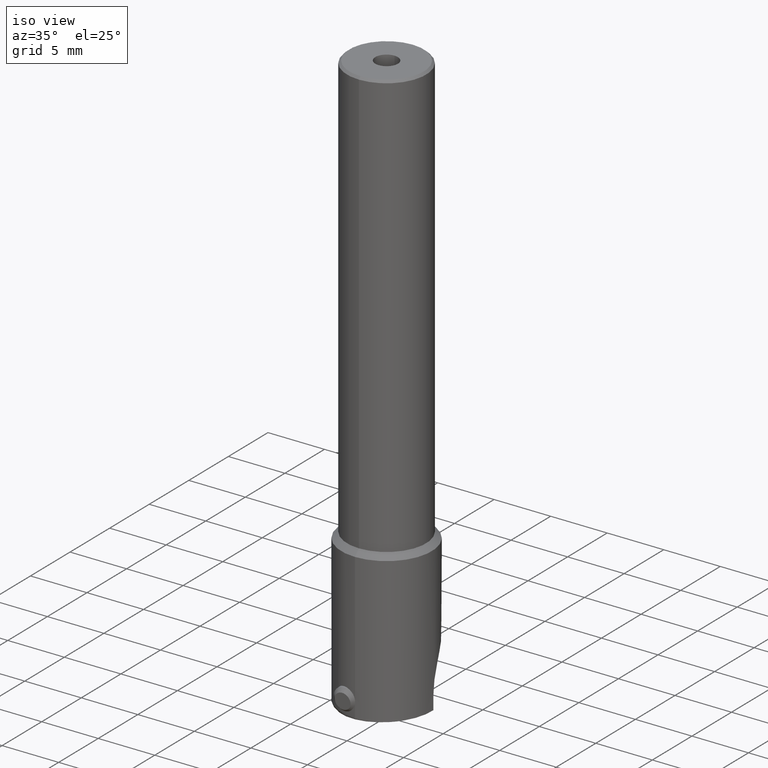
[diagram: clean part render]
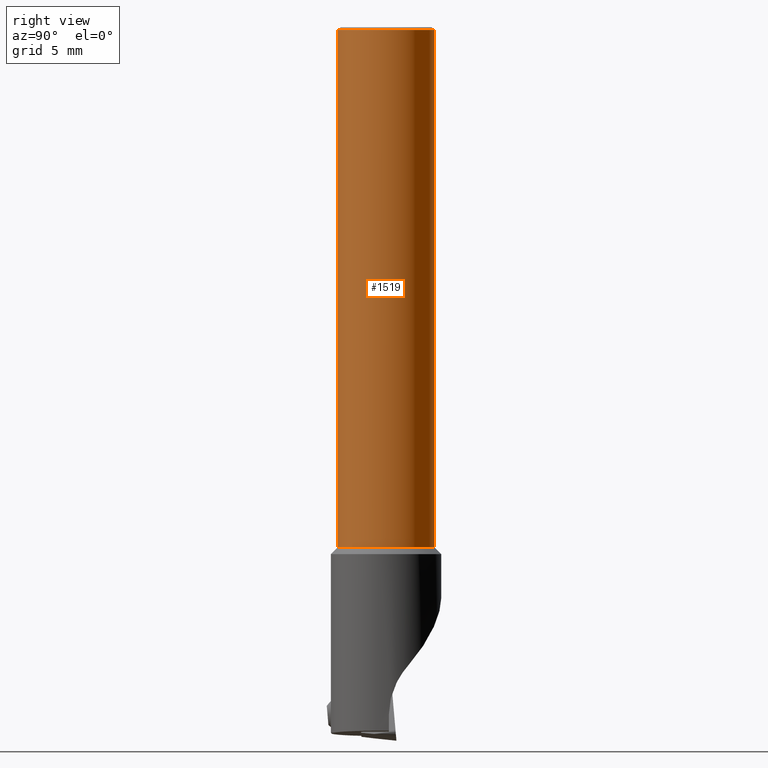
[diagram: tour spotlight — one face highlighted and labeled with its STEP entity id]
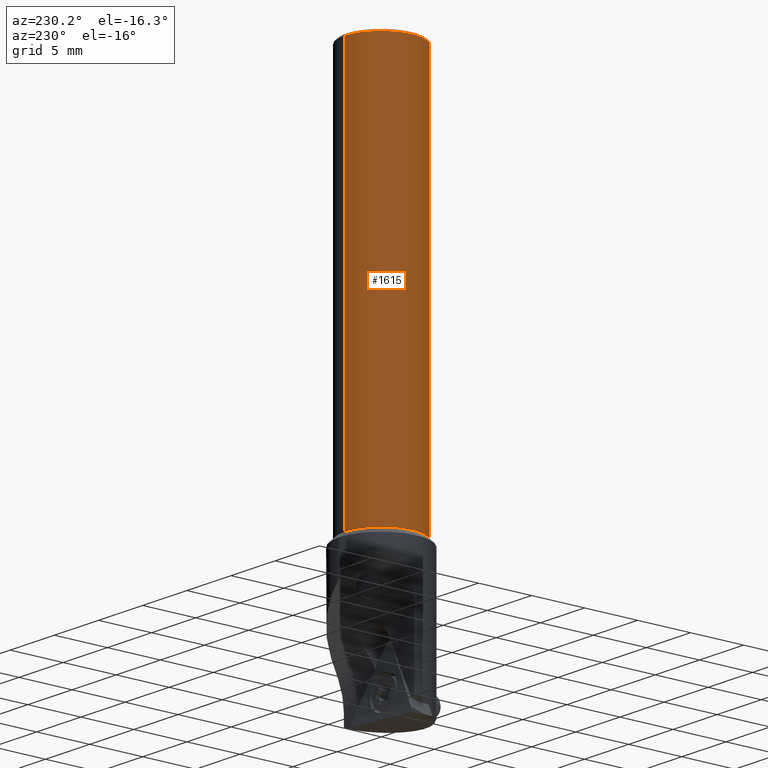
[diagram: tour spotlight — one face highlighted and labeled with its STEP entity id]
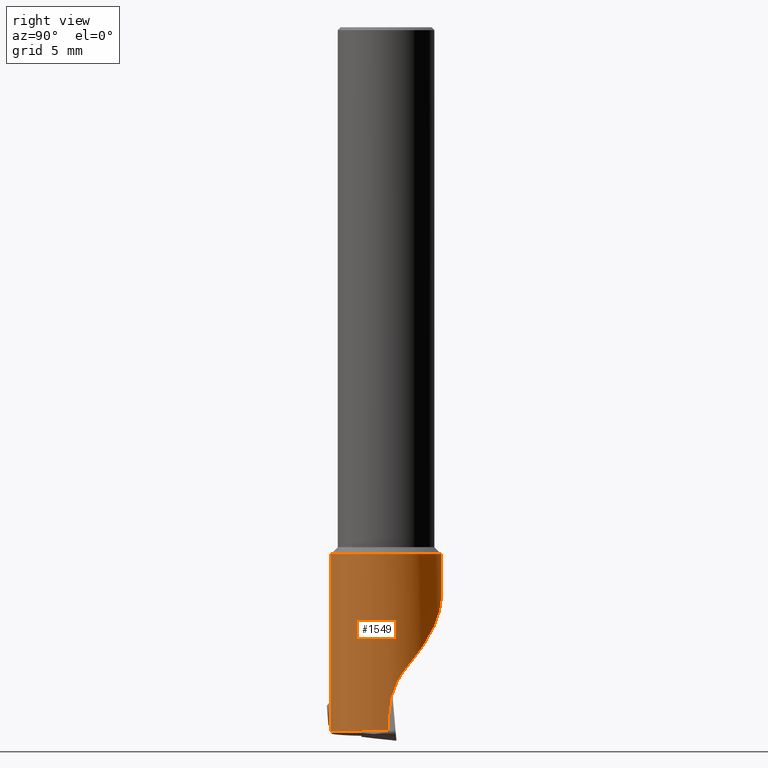
[diagram: tour spotlight — one face highlighted and labeled with its STEP entity id]
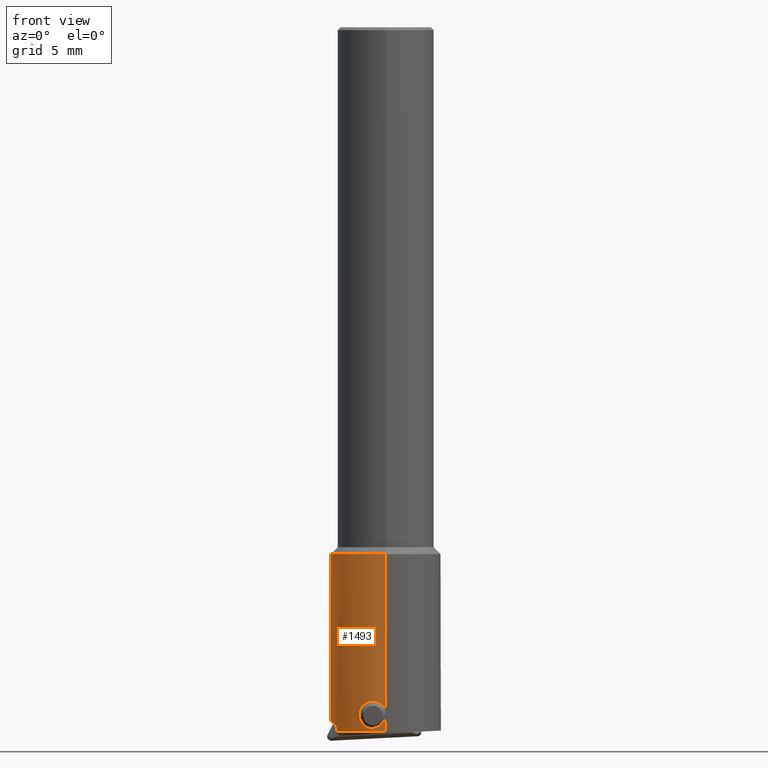
[diagram: tour spotlight — one face highlighted and labeled with its STEP entity id]
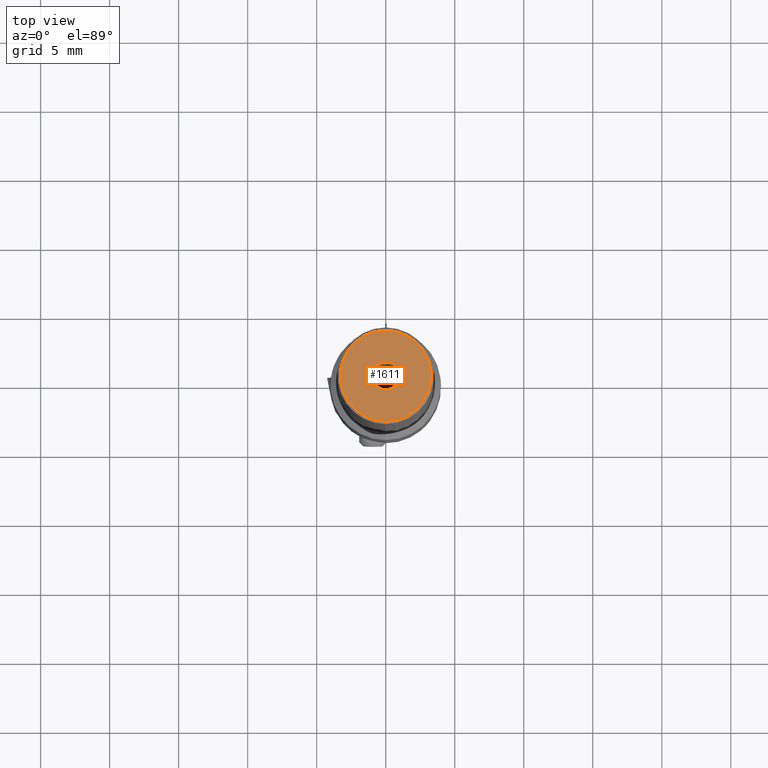
[diagram: tour spotlight — one face highlighted and labeled with its STEP entity id]
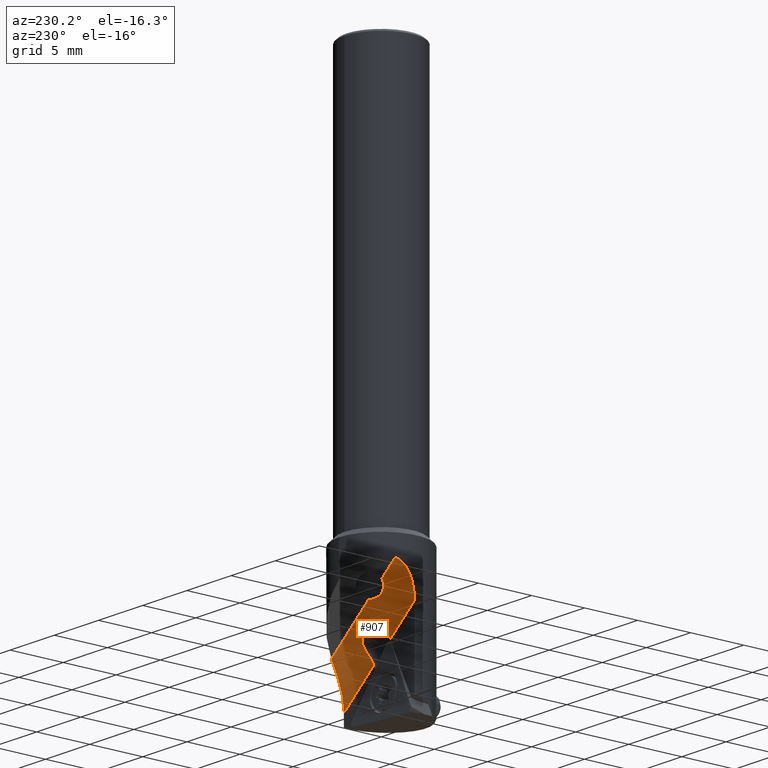
[diagram: tour spotlight — one face highlighted and labeled with its STEP entity id]
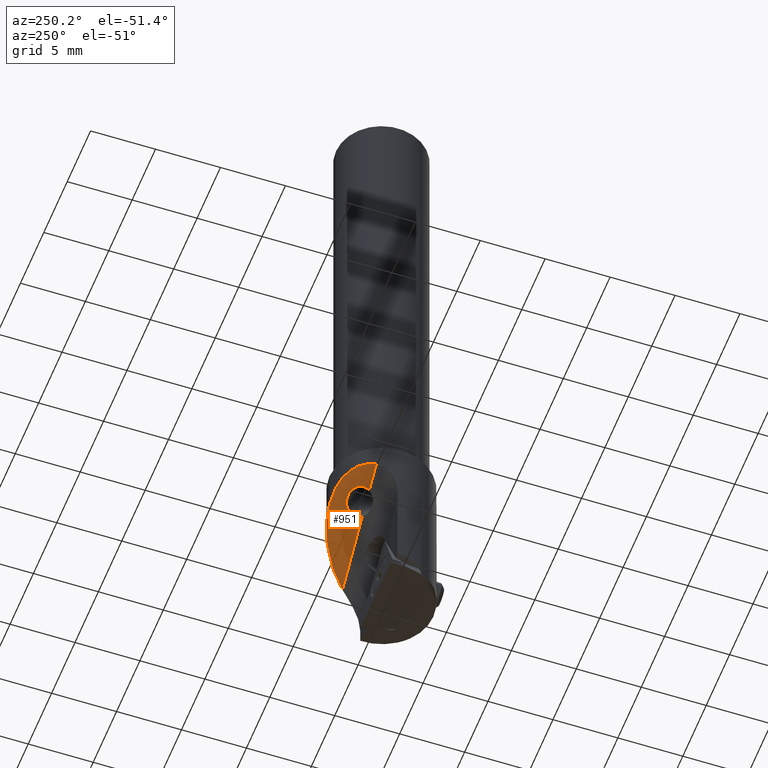
[diagram: tour spotlight — one face highlighted and labeled with its STEP entity id]
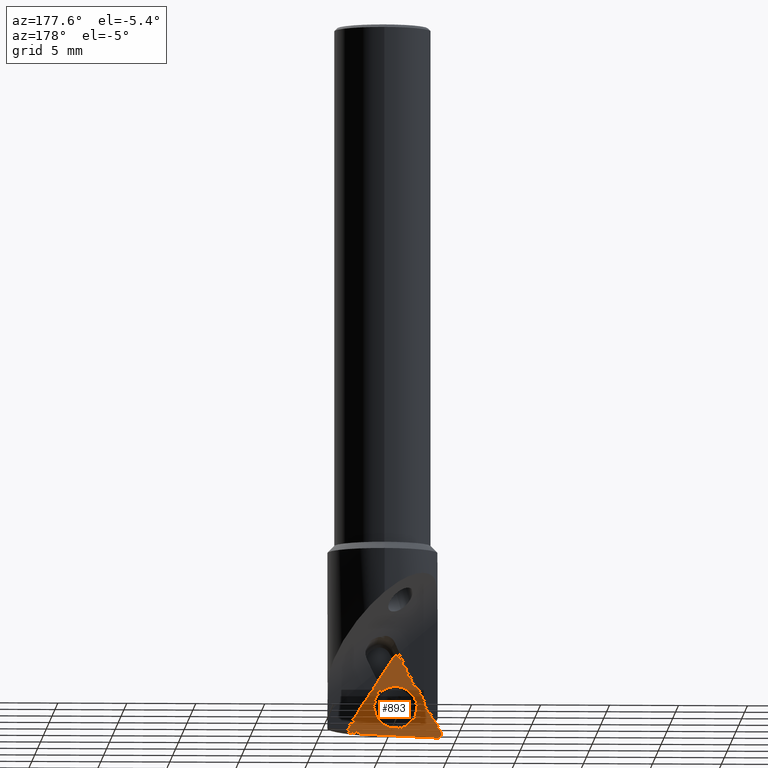
[diagram: tour spotlight — one face highlighted and labeled with its STEP entity id]
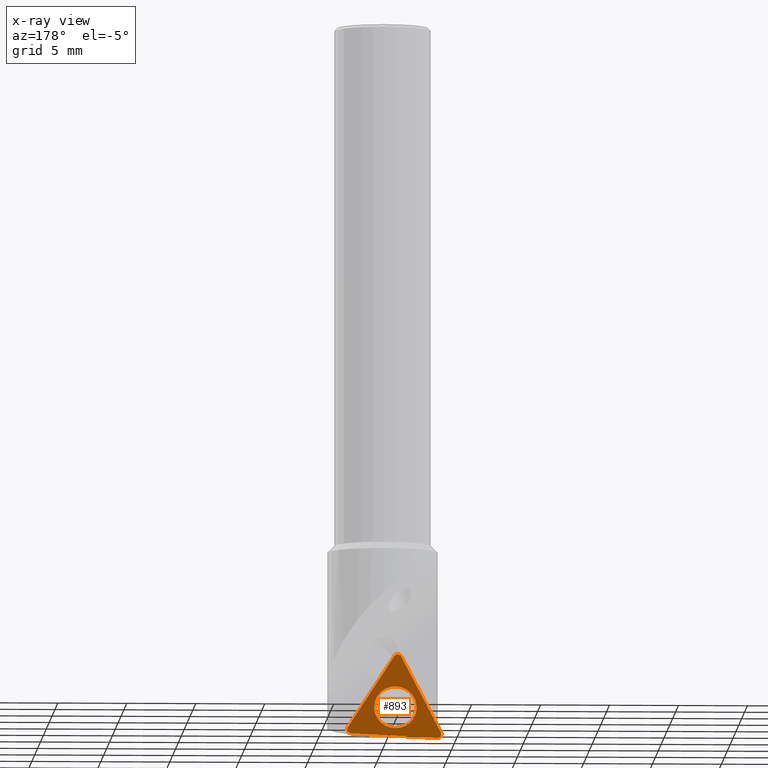
[diagram: x-ray of the same camera — body ghosted, this tour face saturated]
A machine part: a face-by-face anatomy tour. The part has 119 B-rep faces; the first image is the clean iso view, then the 8 largest visible faces are spotlighted one at a time (largest first), each with its STEP entity span.

Face 1 — right view, entity #1519. In plain terms, the highlighted cylindrical surface (partial cylindrical patch) has radius 3.5 mm, axis along (-0, -0, -1).
Definition (entity closure, byte-faithful):
#739=VERTEX_POINT('NONE',#1957);
#755=VERTEX_POINT('NONE',#1974);
#837=VERTEX_POINT('NONE',#2069);
#927=EDGE_CURVE('NONE',#837,#1455,#2171,.T.);
#1403=EDGE_CURVE('NONE',#755,#739,#2693,.T.);
#1455=VERTEX_POINT('NONE',#2752);
#1473=EDGE_CURVE('NONE',#837,#755,#2772,.T.);
#1519=ADVANCED_FACE('NONE',(#2823),#2824,.T.);
#1577=EDGE_CURVE('NONE',#1455,#739,#2887,.T.);
#1957=CARTESIAN_POINT('',(4.28626379701574E-016,-3.5,-3.0));
#1974=CARTESIAN_POINT('',(0.0,3.5,-3.0));
#2069=CARTESIAN_POINT('',(0.0,3.5,34.4616023396481));
#2171=CIRCLE('',#3650,3.5);
#2693=CIRCLE('',#4507,3.5);
#2752=CARTESIAN_POINT('',(4.28626379701574E-016,-3.5,34.4616023396481));
#2772=LINE('',#4622,#4623);
#2823=FACE_OUTER_BOUND('',#4704,.T.);
#2824=CYLINDRICAL_SURFACE('',#4705,3.5);
#2887=LINE('',#4804,#4805);
#3650=AXIS2_PLACEMENT_3D('',#5656,#5657,#5658);
#4507=AXIS2_PLACEMENT_3D('',#6256,#6257,#6258);
#4622=CARTESIAN_POINT('',(0.0,3.5,-1.94289029309402E-016));
#4623=VECTOR('',#6362,1000.0);
#4704=EDGE_LOOP('',(#6428,#6429,#6430,#6431));
#4705=AXIS2_PLACEMENT_3D('',#6432,#6433,#6434);
#4804=CARTESIAN_POINT('',(4.28626379701574E-016,-3.5,1.94289029309402E-016));
#4805=VECTOR('',#6503,1000.0);
#5656=CARTESIAN_POINT('',(0.0,1.91300321914768E-015,34.4616023396481));
#5657=DIRECTION('',(0.0,-5.55111512312578E-017,-1.0));
#5658=DIRECTION('',(0.0,1.0,-5.55111512312578E-017));
#6256=CARTESIAN_POINT('',(0.0,-1.66533453693773E-016,-3.0));
#6257=DIRECTION('',(0.0,-5.55111512312578E-017,-1.0));
#6258=DIRECTION('',(0.0,1.0,-5.55111512312578E-017));
#6362=DIRECTION('',(0.0,-5.55111512312578E-017,-1.0));
#6428=ORIENTED_EDGE('',*,*,#927,.T.);
#6429=ORIENTED_EDGE('',*,*,#1577,.T.);
#6430=ORIENTED_EDGE('',*,*,#1403,.F.);
#6431=ORIENTED_EDGE('',*,*,#1473,.F.);
#6432=CARTESIAN_POINT('',(0.0,0.0,0.0));
#6433=DIRECTION('',(-0.0,-5.55111512312578E-017,-1.0));
#6434=DIRECTION('',(0.0,1.0,-5.55111512312578E-017));
#6503=DIRECTION('',(0.0,-5.55111512312578E-017,-1.0));

Face 2 — auxiliary view, entity #1615. In plain terms, the highlighted cylindrical surface (partial cylindrical patch) has radius 3.5 mm, axis along (-0, -0, -1).
Definition (entity closure, byte-faithful):
#739=VERTEX_POINT('NONE',#1957);
#755=VERTEX_POINT('NONE',#1974);
#837=VERTEX_POINT('NONE',#2069);
#1247=EDGE_CURVE('NONE',#1455,#837,#2516,.T.);
#1455=VERTEX_POINT('NONE',#2752);
#1473=EDGE_CURVE('NONE',#837,#755,#2772,.T.);
#1577=EDGE_CURVE('NONE',#1455,#739,#2887,.T.);
#1615=ADVANCED_FACE('NONE',(#2931),#2932,.T.);
#1645=EDGE_CURVE('NONE',#739,#755,#2963,.T.);
#1957=CARTESIAN_POINT('',(4.28626379701574E-016,-3.5,-3.0));
#1974=CARTESIAN_POINT('',(0.0,3.5,-3.0));
#2069=CARTESIAN_POINT('',(0.0,3.5,34.4616023396481));
#2516=CIRCLE('',#4237,3.5);
#2752=CARTESIAN_POINT('',(4.28626379701574E-016,-3.5,34.4616023396481));
#2772=LINE('',#4622,#4623);
#2887=LINE('',#4804,#4805);
#2931=FACE_OUTER_BOUND('',#4887,.T.);
#2932=CYLINDRICAL_SURFACE('',#4888,3.5);
#2963=CIRCLE('',#4943,3.5);
#4237=AXIS2_PLACEMENT_3D('',#6019,#6020,#6021);
#4622=CARTESIAN_POINT('',(0.0,3.5,-1.94289029309402E-016));
#4623=VECTOR('',#6362,1000.0);
#4804=CARTESIAN_POINT('',(4.28626379701574E-016,-3.5,1.94289029309402E-016));
#4805=VECTOR('',#6503,1000.0);
#4887=EDGE_LOOP('',(#6550,#6551,#6552,#6553));
#4888=AXIS2_PLACEMENT_3D('',#6554,#6555,#6556);
#4943=AXIS2_PLACEMENT_3D('',#6576,#6577,#6578);
#6019=CARTESIAN_POINT('',(0.0,1.91300321914768E-015,34.4616023396481));
#6020=DIRECTION('',(0.0,-5.55111512312578E-017,-1.0));
#6021=DIRECTION('',(0.0,1.0,-5.55111512312578E-017));
#6362=DIRECTION('',(0.0,-5.55111512312578E-017,-1.0));
#6503=DIRECTION('',(0.0,-5.55111512312578E-017,-1.0));
#6550=ORIENTED_EDGE('',*,*,#1577,.F.);
#6551=ORIENTED_EDGE('',*,*,#1247,.T.);
#6552=ORIENTED_EDGE('',*,*,#1473,.T.);
#6553=ORIENTED_EDGE('',*,*,#1645,.F.);
#6554=CARTESIAN_POINT('',(0.0,0.0,0.0));
#6555=DIRECTION('',(-0.0,-5.55111512312578E-017,-1.0));
#6556=DIRECTION('',(0.0,1.0,-5.55111512312578E-017));
#6576=CARTESIAN_POINT('',(0.0,-1.66533453693773E-016,-3.0));
#6577=DIRECTION('',(0.0,-5.55111512312578E-017,-1.0));
#6578=DIRECTION('',(0.0,1.0,-5.55111512312578E-017));

Face 3 — right view, entity #1549. In plain terms, the highlighted cylindrical surface (partial cylindrical patch) has radius 4 mm, axis along (-0, 0, 1).
Definition (entity closure, byte-faithful):
#697=VERTEX_POINT('NONE',#1911);
#785=VERTEX_POINT('NONE',#2011);
#789=EDGE_CURVE('NONE',#1551,#1349,#2015,.T.);
#895=VERTEX_POINT('NONE',#2133);
#1017=VERTEX_POINT('NONE',#2267);
#1027=EDGE_CURVE('NONE',#785,#1085,#2277,.T.);
#1085=VERTEX_POINT('NONE',#2340);
#1119=EDGE_CURVE('NONE',#1017,#1085,#2377,.T.);
#1261=EDGE_CURVE('NONE',#1017,#1773,#2535,.T.);
#1333=EDGE_CURVE('NONE',#697,#1349,#2614,.T.);
#1349=VERTEX_POINT('NONE',#2633);
#1471=EDGE_CURVE('NONE',#785,#697,#2770,.T.);
#1495=EDGE_CURVE('NONE',#895,#1551,#2797,.T.);
#1549=ADVANCED_FACE('NONE',(#2855),#2856,.T.);
#1551=VERTEX_POINT('NONE',#2858);
#1607=EDGE_CURVE('NONE',#1773,#895,#2921,.T.);
#1773=VERTEX_POINT('NONE',#3103);
#1911=CARTESIAN_POINT('',(0.0,-4.0,-3.5));
#2011=CARTESIAN_POINT('',(0.0,-4.0,-16.3627938977984));
#2015=LINE('',#3439,#3440);
#2133=CARTESIAN_POINT('',(3.62077339804633,1.70000000000001,-11.4466419983357));
#2267=CARTESIAN_POINT('',(3.99499687108763,0.199999999999999,-16.2854921537674));
#2277=CIRCLE('',#3822,4.0);
#2340=CARTESIAN_POINT('',(2.50677162839053,-3.11706528694804,-16.3627938977984));
#2377=(B_SPLINE_CURVE(3,(#4002,#4003,#4004,#4005),.UNSPECIFIED.,.F.,.F.)B_SPLINE_CURVE_WITH_KNOTS((4,4),(6.23088220089242,7.17439730713295),.UNSPECIFIED.)RATIONAL_B_SPLINE_CURVE((1.0,0.927180626584929,0.927180626584929,1.0))BOUNDED_CURVE()REPRESENTATION_ITEM('')GEOMETRIC_REPRESENTATION_ITEM()CURVE());
#2535=LINE('',#4258,#4259);
#2614=CIRCLE('',#4387,4.0);
#2633=CARTESIAN_POINT('',(4.89858719658941E-016,4.0,-3.5));
#2770=LINE('',#4618,#4619);
#2797=(B_SPLINE_CURVE(3,(#4659,#4660,#4661,#4662),.UNSPECIFIED.,.F.,.F.)B_SPLINE_CURVE_WITH_KNOTS((4,4),(4.31237293047158,5.44420737165672),.UNSPECIFIED.)RATIONAL_B_SPLINE_CURVE((1.0,0.896064767204472,0.896064767204472,1.0))BOUNDED_CURVE()REPRESENTATION_ITEM('')GEOMETRIC_REPRESENTATION_ITEM()CURVE());
#2855=FACE_OUTER_BOUND('',#4747,.T.);
#2856=CYLINDRICAL_SURFACE('',#4748,4.0);
#2858=CARTESIAN_POINT('',(4.89858719658941E-016,4.0,-6.67499470069303));
#2921=B_SPLINE_CURVE_WITH_KNOTS('',3,(#4856,#4857,#4858,#4859,#4860,#4861,#4862,#4863,#4864,#4865),.UNSPECIFIED.,.F.,.F.,(4,2,2,2,4),(1.05145603036364E-017,0.00102667446881912,0.00205334893763822,0.00308002340645733,0.00410669787527643),.UNSPECIFIED.);
#3103=CARTESIAN_POINT('',(3.99499687108764,0.199999999999999,-15.152200401084));
#3439=CARTESIAN_POINT('',(4.89858719658941E-016,4.0,-2.22044604925031E-016));
#3440=VECTOR('',#5456,1000.0);
#3822=AXIS2_PLACEMENT_3D('',#5762,#5763,#5764);
#4002=CARTESIAN_POINT('',(3.99499687108763,0.199999999999999,-16.2854921537674));
#4003=CARTESIAN_POINT('',(4.06034948246132,-1.10541738977633,-16.2819246948321));
#4004=CARTESIAN_POINT('',(3.52531341001206,-2.29794492678414,-16.3097156637885));
#4005=CARTESIAN_POINT('',(2.50677162839053,-3.11706528694804,-16.3627938977984));
#4258=CARTESIAN_POINT('',(3.99499687108763,0.2,-1.11022302462516E-017));
#4259=VECTOR('',#6056,1000.0);
#4387=AXIS2_PLACEMENT_3D('',#6143,#6144,#6145);
#4618=CARTESIAN_POINT('',(0.0,-4.0,2.22044604925031E-016));
#4619=VECTOR('',#6361,1000.0);
#4659=CARTESIAN_POINT('',(3.62077339804633,1.70000000000001,-11.4466419983357));
#4660=CARTESIAN_POINT('',(2.94260556657088,3.14440708448062,-9.78897486190376));
#4661=CARTESIAN_POINT('',(1.59568901523633,4.0,-8.01393676485146));
#4662=CARTESIAN_POINT('',(4.89858719658941E-016,4.0,-6.67499470069303));
#4747=EDGE_LOOP('',(#6462,#6463,#6464,#6465,#6466,#6467,#6468,#6469));
#4748=AXIS2_PLACEMENT_3D('',#6470,#6471,#6472);
#4856=CARTESIAN_POINT('',(3.99499687108764,0.199999999999999,-15.152200401084));
#4857=CARTESIAN_POINT('',(3.99499687108763,0.199999999999999,-14.8061531014543));
#4858=CARTESIAN_POINT('',(3.99369702595204,0.234680073773155,-14.4653029692049));
#4859=CARTESIAN_POINT('',(3.98332198618943,0.37126355391312,-13.7937382957228));
#4860=CARTESIAN_POINT('',(3.97396253125923,0.475004544789389,-13.4608514044435));
#4861=CARTESIAN_POINT('',(3.93319234026946,0.740273957308035,-12.832084751007));
#4862=CARTESIAN_POINT('',(3.9017415013969,0.90212250540751,-12.5331207784358));
#4863=CARTESIAN_POINT('',(3.79649640651579,1.27437309835008,-11.9632252478366));
#4864=CARTESIAN_POINT('',(3.7227510755891,1.48280113997564,-11.6959092694544));
#4865=CARTESIAN_POINT('',(3.62077339804633,1.70000000000001,-11.4466419983357));
#5456=DIRECTION('',(0.0,5.55111512312578E-017,1.0));
#5762=CARTESIAN_POINT('',(0.0,-9.0831752662659E-016,-16.3627938977984));
#5763=DIRECTION('',(0.0,5.55111512312578E-017,1.0));
#5764=DIRECTION('',(-0.0,-1.0,5.55111512312578E-017));
#6056=DIRECTION('',(0.0,5.55111512312578E-017,1.0));
#6143=CARTESIAN_POINT('',(0.0,-1.94289029309402E-016,-3.5));
#6144=DIRECTION('',(0.0,5.55111512312578E-017,1.0));
#6145=DIRECTION('',(0.0,1.0,-5.55111512312578E-017));
#6361=DIRECTION('',(0.0,5.55111512312578E-017,1.0));
#6462=ORIENTED_EDGE('',*,*,#1495,.T.);
#6463=ORIENTED_EDGE('',*,*,#789,.T.);
#6464=ORIENTED_EDGE('',*,*,#1333,.F.);
#6465=ORIENTED_EDGE('',*,*,#1471,.F.);
#6466=ORIENTED_EDGE('',*,*,#1027,.T.);
#6467=ORIENTED_EDGE('',*,*,#1119,.F.);
#6468=ORIENTED_EDGE('',*,*,#1261,.T.);
#6469=ORIENTED_EDGE('',*,*,#1607,.T.);
#6470=CARTESIAN_POINT('',(0.0,0.0,0.0));
#6471=DIRECTION('',(-0.0,5.55111512312578E-017,1.0));
#6472=DIRECTION('',(-0.0,-1.0,5.55111512312578E-017));

Face 4 — front view, entity #1493. In plain terms, the highlighted cylindrical surface (partial cylindrical patch) has radius 4 mm, axis along (-0, 0, 1).
Definition (entity closure, byte-faithful):
#697=VERTEX_POINT('NONE',#1911);
#737=VERTEX_POINT('NONE',#1955);
#785=VERTEX_POINT('NONE',#2011);
#789=EDGE_CURVE('NONE',#1551,#1349,#2015,.T.);
#839=VERTEX_POINT('NONE',#2071);
#925=VERTEX_POINT('NONE',#2169);
#953=EDGE_CURVE('NONE',#1533,#1211,#2200,.T.);
#1031=EDGE_CURVE('NONE',#1211,#1533,#2281,.T.);
#1207=EDGE_CURVE('NONE',#1349,#697,#2469,.T.);
#1211=VERTEX_POINT('NONE',#2474);
#1309=VERTEX_POINT('NONE',#2589);
#1321=EDGE_CURVE('NONE',#925,#1669,#2601,.T.);
#1323=EDGE_CURVE('NONE',#1353,#1669,#2603,.T.);
#1335=EDGE_CURVE('NONE',#737,#925,#2616,.T.);
#1349=VERTEX_POINT('NONE',#2633);
#1353=VERTEX_POINT('NONE',#2637);
#1471=EDGE_CURVE('NONE',#785,#697,#2770,.T.);
#1493=ADVANCED_FACE('NONE',(#2793,#2794),#2795,.T.);
#1533=VERTEX_POINT('NONE',#2839);
#1551=VERTEX_POINT('NONE',#2858);
#1563=EDGE_CURVE('NONE',#1309,#839,#2871,.T.);
#1613=EDGE_CURVE('NONE',#1551,#737,#2929,.T.);
#1669=VERTEX_POINT('NONE',#2990);
#1719=EDGE_CURVE('NONE',#1353,#839,#3043,.T.);
#1771=EDGE_CURVE('NONE',#1309,#785,#3101,.T.);
#1911=CARTESIAN_POINT('',(0.0,-4.0,-3.5));
#1955=CARTESIAN_POINT('',(-3.62077339804634,1.70000000000002,-5.37026275258144));
#2011=CARTESIAN_POINT('',(0.0,-4.0,-16.3627938977984));
#2015=LINE('',#3439,#3440);
#2071=CARTESIAN_POINT('',(-3.55541353965647,-1.83276691426582,-16.1652308925203));
#2169=CARTESIAN_POINT('',(-3.99499687108764,0.2,-8.44779959891602));
#2200=B_SPLINE_CURVE_WITH_KNOTS('',3,(#3694,#3695,#3696,#3697,#3698,#3699,#3700,#3701,#3702,#3703,#3704,#3705),.UNSPECIFIED.,.F.,.F.,(4,2,2,2,2,4),(0.0,0.00062356578418371,0.00124713156836742,0.00155891446045928,0.00187069735255114,0.00249426313673485),.UNSPECIFIED.);
#2281=B_SPLINE_CURVE_WITH_KNOTS('',3,(#3828,#3829,#3830,#3831,#3832,#3833,#3834,#3835,#3836,#3837,#3838,#3839,#3840,#3841,#3842,#3843,#3844,#3845),.UNSPECIFIED.,.F.,.F.,(4,2,2,2,2,2,2,2,4),(0.00249426313673485,0.00280360755563344,0.00311295197453204,0.00342229639343063,0.00373164081232922,0.00404098523122781,0.00435032965012641,0.004659674069025,0.00496901848792359),.UNSPECIFIED.);
#2469=CIRCLE('',#4176,4.0);
#2474=CARTESIAN_POINT('',(-0.151180995015163,-3.99714201733517,-14.9446066241257));
#2589=CARTESIAN_POINT('',(-3.56427042858297,-1.81548239097188,-16.3627938977984));
#2601=LINE('',#4358,#4359);
#2603=(B_SPLINE_CURVE(3,(#4363,#4364,#4365,#4366),.UNSPECIFIED.,.F.,.F.)B_SPLINE_CURVE_WITH_KNOTS((4,4),(5.6866866961492,6.16379297945795),.UNSPECIFIED.)RATIONAL_B_SPLINE_CURVE((1.0,0.981120586708019,0.981120586708019,1.0))BOUNDED_CURVE()REPRESENTATION_ITEM('')GEOMETRIC_REPRESENTATION_ITEM()CURVE());
#2616=B_SPLINE_CURVE_WITH_KNOTS('',3,(#4390,#4391,#4392,#4393,#4394,#4395,#4396,#4397,#4398,#4399,#4400,#4401,#4402,#4403),.UNSPECIFIED.,.F.,.F.,(4,2,2,2,2,2,4),(2.30504543680092E-018,0.000456801768820576,0.000913603537641149,0.00137040530646172,0.0018272070752823,0.00274081061292345,0.0036544141505646),.UNSPECIFIED.);
#2633=CARTESIAN_POINT('',(4.89858719658941E-016,4.0,-3.5));
#2637=CARTESIAN_POINT('',(-3.6407075513465,-1.65687915237309,-15.8808945612359));
#2770=LINE('',#4618,#4619);
#2793=FACE_OUTER_BOUND('',#4653,.T.);
#2794=FACE_BOUND('',#4654,.T.);
#2795=CYLINDRICAL_SURFACE('',#4655,4.0);
#2839=CARTESIAN_POINT('',(-1.7090430692323,-3.61651376155394,-14.993261925633));
#2858=CARTESIAN_POINT('',(4.89858719658941E-016,4.0,-6.67499470069303));
#2871=(B_SPLINE_CURVE(3,(#4777,#4778,#4779,#4780),.UNSPECIFIED.,.F.,.F.)B_SPLINE_CURVE_WITH_KNOTS((4,4),(5.1834933138792,5.18834872302773),.UNSPECIFIED.)RATIONAL_B_SPLINE_CURVE((1.0,0.999998035417798,0.999998035417798,1.0))BOUNDED_CURVE()REPRESENTATION_ITEM('')GEOMETRIC_REPRESENTATION_ITEM()CURVE());
#2929=(B_SPLINE_CURVE(3,(#4876,#4877,#4878,#4879),.UNSPECIFIED.,.F.,.F.)B_SPLINE_CURVE_WITH_KNOTS((4,4),(5.44420737165672,6.57604181284185),.UNSPECIFIED.)RATIONAL_B_SPLINE_CURVE((1.0,0.896064767204472,0.896064767204472,1.0))BOUNDED_CURVE()REPRESENTATION_ITEM('')GEOMETRIC_REPRESENTATION_ITEM()CURVE());
#2990=CARTESIAN_POINT('',(-3.99499687108763,0.199999999999999,-15.537229706097));
#3043=(B_SPLINE_CURVE(3,(#5065,#5066,#5067,#5068),.UNSPECIFIED.,.F.,.F.)B_SPLINE_CURVE_WITH_KNOTS((4,4),(1.59790263752992,1.64677695366998),.UNSPECIFIED.)RATIONAL_B_SPLINE_CURVE((1.0,0.999800951674334,0.999800951674334,1.0))BOUNDED_CURVE()REPRESENTATION_ITEM('')GEOMETRIC_REPRESENTATION_ITEM()CURVE());
#3101=CIRCLE('',#5159,4.0);
#3439=CARTESIAN_POINT('',(4.89858719658941E-016,4.0,-2.22044604925031E-016));
#3440=VECTOR('',#5456,1000.0);
#3694=CARTESIAN_POINT('',(-1.7090430692323,-3.61651376155394,-14.993261925633));
#3695=CARTESIAN_POINT('',(-1.69806260005839,-3.62170276288945,-15.2040360693526));
#3696=CARTESIAN_POINT('',(-1.60191053227075,-3.66853088135138,-15.4009499302252));
#3697=CARTESIAN_POINT('',(-1.31193878283318,-3.78193770584959,-15.6774593472043));
#3698=CARTESIAN_POINT('',(-1.11382735926946,-3.84739715131456,-15.7600246275233));
#3699=CARTESIAN_POINT('',(-0.810700349747432,-3.91835858485023,-15.7590649160004));
#3700=CARTESIAN_POINT('',(-0.70744464195036,-3.93810748425915,-15.7379864075639));
#3701=CARTESIAN_POINT('',(-0.518201131883883,-3.96744704639097,-15.6559637593626));
#3702=CARTESIAN_POINT('',(-0.4313364989606,-3.97732676595524,-15.595001948649));
#3703=CARTESIAN_POINT('',(-0.216307332067294,-3.99673975287009,-15.365232455255));
#3704=CARTESIAN_POINT('',(-0.140323609402552,-3.99755266833357,-15.1526051709311));
#3705=CARTESIAN_POINT('',(-0.151180995015163,-3.99714201733517,-14.9446066241257));
#3828=CARTESIAN_POINT('',(-0.151180995015163,-3.99714201733517,-14.9446066241257));
#3829=CARTESIAN_POINT('',(-0.156567229680825,-3.99693829769933,-14.8414207354427));
#3830=CARTESIAN_POINT('',(-0.182883079823583,-3.99606626420855,-14.7384117686748));
#3831=CARTESIAN_POINT('',(-0.271998042943904,-3.9909909638417,-14.5523299489055));
#3832=CARTESIAN_POINT('',(-0.335665407714182,-3.98663577841257,-14.467397074267));
#3833=CARTESIAN_POINT('',(-0.488936768865884,-3.97075269082653,-14.3294312866788));
#3834=CARTESIAN_POINT('',(-0.579049964220905,-3.9590774689375,-14.2755868661093));
#3835=CARTESIAN_POINT('',(-0.772126183963429,-3.92599215767822,-14.2057860566437));
#3836=CARTESIAN_POINT('',(-0.873553194030311,-3.9048436577396,-14.1899831405462));
#3837=CARTESIAN_POINT('',(-1.07605622471377,-3.85395928564957,-14.1971979039414));
#3838=CARTESIAN_POINT('',(-1.17408110576504,-3.82500479350956,-14.2200407786777));
#3839=CARTESIAN_POINT('',(-1.35536073908613,-3.76458834140327,-14.3011742237683));
#3840=CARTESIAN_POINT('',(-1.43770039772013,-3.73342200856227,-14.3593999179325));
#3841=CARTESIAN_POINT('',(-1.57413768176462,-3.67797673816332,-14.5044300334299));
#3842=CARTESIAN_POINT('',(-1.62873318583366,-3.65358791152205,-14.5923471905521));
#3843=CARTESIAN_POINT('',(-1.69861921633342,-3.6216252119399,-14.783664981296));
#3844=CARTESIAN_POINT('',(-1.71449036435655,-3.61393955263563,-14.8886990925502));
#3845=CARTESIAN_POINT('',(-1.7090430692323,-3.61651376155394,-14.993261925633));
#4176=AXIS2_PLACEMENT_3D('',#5945,#5946,#5947);
#4358=CARTESIAN_POINT('',(-3.99499687108763,0.2,-1.11022302462516E-017));
#4359=VECTOR('',#6130,1000.0);
#4363=CARTESIAN_POINT('',(-3.6407075513465,-1.65687915237309,-15.8808945612359));
#4364=CARTESIAN_POINT('',(-3.90674046733976,-1.07231748124808,-15.693683719733));
#4365=CARTESIAN_POINT('',(-4.02710940212072,-0.441447304999403,-15.5769244209628));
#4366=CARTESIAN_POINT('',(-3.99499687108763,0.199999999999999,-15.537229706097));
#4390=CARTESIAN_POINT('',(-3.62077339804634,1.70000000000002,-5.37026275258144));
#4391=CARTESIAN_POINT('',(-3.68333787525049,1.56674600310384,-5.41819542875328));
#4392=CARTESIAN_POINT('',(-3.7334186274343,1.44127550145994,-5.48845584982304));
#4393=CARTESIAN_POINT('',(-3.81628141677382,1.2048592725994,-5.66643740307913));
#4394=CARTESIAN_POINT('',(-3.84786609117059,1.09721799808676,-5.77192780287792));
#4395=CARTESIAN_POINT('',(-3.89779727480672,0.903956412342559,-6.00199796388724));
#4396=CARTESIAN_POINT('',(-3.91650451130689,0.816736130671793,-6.12868364531784));
#4397=CARTESIAN_POINT('',(-3.94532837127078,0.663663722888231,-6.39070249574944));
#4398=CARTESIAN_POINT('',(-3.95562148896658,0.597105735320183,-6.52666417427954));
#4399=CARTESIAN_POINT('',(-3.97944308694333,0.42182841332053,-6.94643501306369));
#4400=CARTESIAN_POINT('',(-3.98613110078038,0.337369170138832,-7.24348397046561));
#4401=CARTESIAN_POINT('',(-3.99393516966004,0.227026364374992,-7.83954466358316));
#4402=CARTESIAN_POINT('',(-3.99499687108805,0.19999999999996,-8.14170054571585));
#4403=CARTESIAN_POINT('',(-3.99499687108764,0.2,-8.44779959891602));
#4618=CARTESIAN_POINT('',(0.0,-4.0,2.22044604925031E-016));
#4619=VECTOR('',#6361,1000.0);
#4653=EDGE_LOOP('',(#6384,#6385,#6386,#6387,#6388,#6389,#6390,#6391,#6392,#6393));
#4654=EDGE_LOOP('',(#6394,#6395));
#4655=AXIS2_PLACEMENT_3D('',#6396,#6397,#6398);
#4777=CARTESIAN_POINT('',(-3.56427042858297,-1.81548239097188,-16.3627938977984));
#4778=CARTESIAN_POINT('',(-3.56133212242665,-1.82125106038733,-16.2968577046624));
#4779=CARTESIAN_POINT('',(-3.55837982031778,-1.82701257947096,-16.2310032401933));
#4780=CARTESIAN_POINT('',(-3.55541353965647,-1.83276691426582,-16.1652308925203));
#4876=CARTESIAN_POINT('',(4.89858719658941E-016,4.0,-6.67499470069303));
#4877=CARTESIAN_POINT('',(-1.59568901523633,4.0,-5.3360526365346));
#4878=CARTESIAN_POINT('',(-2.94260556657088,3.14440708448063,-4.85069637068414));
#4879=CARTESIAN_POINT('',(-3.62077339804634,1.70000000000002,-5.37026275258144));
#5065=CARTESIAN_POINT('',(-3.6407075513465,-1.65687915237309,-15.8808945612359));
#5066=CARTESIAN_POINT('',(-3.61371191924855,-1.71619742039016,-15.9757834024648));
#5067=CARTESIAN_POINT('',(-3.58527492168179,-1.77483834673261,-16.0705810488724));
#5068=CARTESIAN_POINT('',(-3.55541353965647,-1.83276691426582,-16.1652308925203));
#5159=AXIS2_PLACEMENT_3D('',#6729,#6730,#6731);
#5456=DIRECTION('',(0.0,5.55111512312578E-017,1.0));
#5945=CARTESIAN_POINT('',(0.0,-1.94289029309402E-016,-3.5));
#5946=DIRECTION('',(0.0,5.55111512312578E-017,1.0));
#5947=DIRECTION('',(0.0,1.0,-5.55111512312578E-017));
#6130=DIRECTION('',(0.0,-5.55111512312578E-017,-1.0));
#6361=DIRECTION('',(0.0,5.55111512312578E-017,1.0));
#6384=ORIENTED_EDGE('',*,*,#789,.F.);
#6385=ORIENTED_EDGE('',*,*,#1613,.T.);
#6386=ORIENTED_EDGE('',*,*,#1335,.T.);
#6387=ORIENTED_EDGE('',*,*,#1321,.T.);
#6388=ORIENTED_EDGE('',*,*,#1323,.F.);
#6389=ORIENTED_EDGE('',*,*,#1719,.T.);
#6390=ORIENTED_EDGE('',*,*,#1563,.F.);
#6391=ORIENTED_EDGE('',*,*,#1771,.T.);
#6392=ORIENTED_EDGE('',*,*,#1471,.T.);
#6393=ORIENTED_EDGE('',*,*,#1207,.F.);
#6394=ORIENTED_EDGE('',*,*,#953,.F.);
#6395=ORIENTED_EDGE('',*,*,#1031,.F.);
#6396=CARTESIAN_POINT('',(0.0,0.0,0.0));
#6397=DIRECTION('',(-0.0,5.55111512312578E-017,1.0));
#6398=DIRECTION('',(-0.0,-1.0,5.55111512312578E-017));
#6729=CARTESIAN_POINT('',(0.0,-9.0831752662659E-016,-16.3627938977984));
#6730=DIRECTION('',(0.0,5.55111512312578E-017,1.0));
#6731=DIRECTION('',(-0.0,-1.0,5.55111512312578E-017));

Face 5 — top view, entity #1611. In plain terms, the highlighted planar face has unit normal (0, -0, -1).
Definition (entity closure, byte-faithful):
#675=EDGE_CURVE('NONE',#1359,#887,#1888,.T.);
#819=VERTEX_POINT('NONE',#2050);
#887=VERTEX_POINT('NONE',#2123);
#929=VERTEX_POINT('NONE',#2173);
#1023=EDGE_CURVE('NONE',#887,#1359,#2273,.T.);
#1359=VERTEX_POINT('NONE',#2643);
#1523=EDGE_CURVE('NONE',#929,#819,#2828,.T.);
#1609=EDGE_CURVE('NONE',#819,#929,#2923,.T.);
#1611=ADVANCED_FACE('NONE',(#2925,#2926),#2927,.F.);
#1888=CIRCLE('',#3244,3.30000000000002);
#2050=CARTESIAN_POINT('',(1.22464679914735E-016,-0.999999999999996,34.6616023396481));
#2123=CARTESIAN_POINT('',(4.16379911710101E-016,-3.30000000000002,34.6616023396481));
#2173=CARTESIAN_POINT('',(0.0,1.0,34.6616023396481));
#2273=CIRCLE('',#3815,3.30000000000002);
#2643=CARTESIAN_POINT('',(0.0,3.30000000000002,34.6616023396481));
#2828=CIRCLE('',#4712,0.999999999999998);
#2923=CIRCLE('',#4868,0.999999999999998);
#2925=FACE_OUTER_BOUND('',#4870,.T.);
#2926=FACE_BOUND('',#4871,.T.);
#2927=PLANE('',#4872);
#3244=AXIS2_PLACEMENT_3D('',#5305,#5306,#5307);
#3815=AXIS2_PLACEMENT_3D('',#5758,#5759,#5760);
#4712=AXIS2_PLACEMENT_3D('',#6436,#6437,#6438);
#4868=AXIS2_PLACEMENT_3D('',#6538,#6539,#6540);
#4870=EDGE_LOOP('',(#6542,#6543));
#4871=EDGE_LOOP('',(#6544,#6545));
#4872=AXIS2_PLACEMENT_3D('',#6546,#6547,#6548);
#5305=CARTESIAN_POINT('',(0.0,1.92410544939393E-015,34.6616023396481));
#5306=DIRECTION('',(0.0,5.55111512312578E-017,1.0));
#5307=DIRECTION('',(0.0,1.0,-5.55111512312578E-017));
#5758=CARTESIAN_POINT('',(0.0,1.92410544939393E-015,34.6616023396481));
#5759=DIRECTION('',(0.0,5.55111512312578E-017,1.0));
#5760=DIRECTION('',(0.0,1.0,-5.55111512312578E-017));
#6436=CARTESIAN_POINT('',(0.0,1.92410544939393E-015,34.6616023396481));
#6437=DIRECTION('',(0.0,5.55111512312578E-017,1.0));
#6438=DIRECTION('',(0.0,1.0,-5.55111512312578E-017));
#6538=CARTESIAN_POINT('',(0.0,1.92410544939393E-015,34.6616023396481));
#6539=DIRECTION('',(0.0,5.55111512312578E-017,1.0));
#6540=DIRECTION('',(0.0,1.0,-5.55111512312578E-017));
#6542=ORIENTED_EDGE('',*,*,#675,.T.);
#6543=ORIENTED_EDGE('',*,*,#1023,.T.);
#6544=ORIENTED_EDGE('',*,*,#1523,.F.);
#6545=ORIENTED_EDGE('',*,*,#1609,.F.);
#6546=CARTESIAN_POINT('',(3.5,1.92410544939393E-015,34.6616023396481));
#6547=DIRECTION('',(0.0,-5.55111512312578E-017,-1.0));
#6548=DIRECTION('',(0.0,1.0,-5.55111512312578E-017));

Face 6 — auxiliary view, entity #907. In plain terms, the highlighted cylindrical surface (partial cylindrical patch) has radius 3 mm, axis along (-0.766, 0, 0.6428).
Definition (entity closure, byte-faithful):
#665=VERTEX_POINT('NONE',#1878);
#737=VERTEX_POINT('NONE',#1955);
#761=EDGE_CURVE('NONE',#1355,#1475,#1981,.T.);
#877=EDGE_CURVE('NONE',#1223,#987,#2113,.T.);
#889=VERTEX_POINT('NONE',#2125);
#895=VERTEX_POINT('NONE',#2133);
#907=ADVANCED_FACE('NONE',(#2147),#2148,.F.);
#925=VERTEX_POINT('NONE',#2169);
#931=EDGE_CURVE('NONE',#1475,#1199,#2175,.T.);
#973=VERTEX_POINT('NONE',#2221);
#987=VERTEX_POINT('NONE',#2235);
#1039=EDGE_CURVE('NONE',#1785,#737,#2289,.T.);
#1067=EDGE_CURVE('NONE',#665,#1785,#2321,.T.);
#1117=EDGE_CURVE('NONE',#1199,#1377,#2375,.T.);
#1177=EDGE_CURVE('NONE',#973,#987,#2438,.T.);
#1179=EDGE_CURVE('NONE',#1377,#1223,#2440,.T.);
#1199=VERTEX_POINT('NONE',#2461);
#1223=VERTEX_POINT('NONE',#2486);
#1253=VERTEX_POINT('NONE',#2524);
#1335=EDGE_CURVE('NONE',#737,#925,#2616,.T.);
#1355=VERTEX_POINT('NONE',#2639);
#1377=VERTEX_POINT('NONE',#2661);
#1407=EDGE_CURVE('NONE',#1253,#973,#2697,.T.);
#1435=EDGE_CURVE('NONE',#1253,#925,#2729,.T.);
#1475=VERTEX_POINT('NONE',#2774);
#1521=EDGE_CURVE('NONE',#895,#889,#2826,.T.);
#1607=EDGE_CURVE('NONE',#1773,#895,#2921,.T.);
#1673=EDGE_CURVE('NONE',#889,#665,#2994,.T.);
#1701=EDGE_CURVE('NONE',#1773,#1355,#3025,.T.);
#1773=VERTEX_POINT('NONE',#3103);
#1785=VERTEX_POINT('NONE',#3116);
#1878=CARTESIAN_POINT('',(-1.28049315763484,1.29063354718706,-7.70490411859295));
#1955=CARTESIAN_POINT('',(-3.62077339804634,1.70000000000002,-5.37026275258144));
#1981=(B_SPLINE_CURVE(3,(#3367,#3368,#3369,#3370),.UNSPECIFIED.,.F.,.F.)B_SPLINE_CURVE_WITH_KNOTS((4,4),(4.53927260112615,4.9372804148384),.UNSPECIFIED.)RATIONAL_B_SPLINE_CURVE((1.0,0.98684265650338,0.98684265650338,1.0))BOUNDED_CURVE()REPRESENTATION_ITEM('')GEOMETRIC_REPRESENTATION_ITEM()CURVE());
#2113=B_SPLINE_CURVE_WITH_KNOTS('',3,(#3566,#3567,#3568,#3569),.UNSPECIFIED.,.F.,.F.,(4,4),(0.0,0.000444599146740434),.UNSPECIFIED.);
#2125=CARTESIAN_POINT('',(-0.612493285562468,1.70000000000001,-7.89450948544457));
#2133=CARTESIAN_POINT('',(3.62077339804633,1.70000000000001,-11.4466419983357));
#2147=FACE_OUTER_BOUND('',#3609,.T.);
#2148=CYLINDRICAL_SURFACE('',#3610,3.0);
#2169=CARTESIAN_POINT('',(-3.99499687108764,0.2,-8.44779959891602));
#2175=B_SPLINE_CURVE_WITH_KNOTS('',3,(#3655,#3656,#3657,#3658,#3659,#3660),.UNSPECIFIED.,.F.,.F.,(4,2,4),(0.0,0.000298877110621192,0.000597754221242384),.UNSPECIFIED.);
#2221=CARTESIAN_POINT('',(-0.900597785664035,0.298392120788855,-10.049564636026));
#2235=CARTESIAN_POINT('',(0.129409513374951,0.735859174572686,-9.67484907230846));
#2289=LINE('',#3856,#3857);
#2321=B_SPLINE_CURVE_WITH_KNOTS('',3,(#3898,#3899,#3900,#3901,#3902,#3903,#3904,#3905),.UNSPECIFIED.,.F.,.F.,(4,2,2,4),(0.000825189117364397,0.0011957200979265,0.00156625107848861,0.00230731303961283),.UNSPECIFIED.);
#2375=B_SPLINE_CURVE_WITH_KNOTS('',3,(#3989,#3990,#3991,#3992,#3993,#3994,#3995,#3996,#3997,#3998),.UNSPECIFIED.,.F.,.F.,(4,2,2,2,4),(0.000597754221242384,0.000873219944252038,0.00114868566726169,0.00142415139027135,0.001699617113281),.UNSPECIFIED.);
#2438=B_SPLINE_CURVE_WITH_KNOTS('',3,(#4108,#4109,#4110,#4111,#4112,#4113,#4114,#4115,#4116,#4117),.UNSPECIFIED.,.F.,.F.,(4,2,2,2,4),(0.000356138615132322,0.000684387242199032,0.00101263586926574,0.00134088449633245,0.00166913312339916),.UNSPECIFIED.);
#2440=(B_SPLINE_CURVE(3,(#4121,#4122,#4123,#4124),.UNSPECIFIED.,.F.,.F.)B_SPLINE_CURVE_WITH_KNOTS((4,4),(3.92568784972554,3.9462174922337),.UNSPECIFIED.)RATIONAL_B_SPLINE_CURVE((1.0,0.999964878123265,0.999964878123265,1.0))BOUNDED_CURVE()REPRESENTATION_ITEM('')GEOMETRIC_REPRESENTATION_ITEM()CURVE());
#2461=CARTESIAN_POINT('',(1.26006603259408,0.686764383653209,-10.7188236406658));
#2486=CARTESIAN_POINT('',(0.537772578530005,0.879457331046352,-9.76922582165476));
#2524=CARTESIAN_POINT('',(-1.23048293729086,0.199999999999999,-10.7675022211493));
#2616=B_SPLINE_CURVE_WITH_KNOTS('',3,(#4390,#4391,#4392,#4393,#4394,#4395,#4396,#4397,#4398,#4399,#4400,#4401,#4402,#4403),.UNSPECIFIED.,.F.,.F.,(4,2,2,2,2,2,4),(2.30504543680092E-018,0.000456801768820576,0.000913603537641149,0.00137040530646172,0.0018272070752823,0.00274081061292345,0.0036544141505646),.UNSPECIFIED.);
#2639=CARTESIAN_POINT('',(0.619429978400519,0.2,-12.319763466416));
#2661=CARTESIAN_POINT('',(0.715426997578645,0.918977352504065,-9.85663348510015));
#2697=(B_SPLINE_CURVE(3,(#4515,#4516,#4517,#4518),.UNSPECIFIED.,.F.,.F.)B_SPLINE_CURVE_WITH_KNOTS((4,4),(3.99713013139344,4.25395005364368),.UNSPECIFIED.)RATIONAL_B_SPLINE_CURVE((1.0,0.994511175672915,0.994511175672915,1.0))BOUNDED_CURVE()REPRESENTATION_ITEM('')GEOMETRIC_REPRESENTATION_ITEM()CURVE());
#2729=LINE('',#4561,#4562);
#2774=CARTESIAN_POINT('',(1.15244302202747,0.434495121152672,-11.2491548820787));
#2826=LINE('',#4708,#4709);
#2921=B_SPLINE_CURVE_WITH_KNOTS('',3,(#4856,#4857,#4858,#4859,#4860,#4861,#4862,#4863,#4864,#4865),.UNSPECIFIED.,.F.,.F.,(4,2,2,2,4),(1.05145603036364E-017,0.00102667446881912,0.00205334893763822,0.00308002340645733,0.00410669787527643),.UNSPECIFIED.);
#2994=B_SPLINE_CURVE_WITH_KNOTS('',3,(#4980,#4981,#4982,#4983,#4984,#4985),.UNSPECIFIED.,.F.,.F.,(4,2,4),(1.0842021724855E-019,0.000412594558682199,0.000825189117364397),.UNSPECIFIED.);
#3025=LINE('',#5029,#5030);
#3103=CARTESIAN_POINT('',(3.99499687108764,0.199999999999999,-15.152200401084));
#3116=CARTESIAN_POINT('',(-2.09865456844174,1.70000000000001,-6.64747210111064));
#3367=CARTESIAN_POINT('',(0.619429978400519,0.2,-12.319763466416));
#3368=CARTESIAN_POINT('',(0.805611105673153,0.200000000000001,-11.9529666575071));
#3369=CARTESIAN_POINT('',(0.985650966507552,0.279207196678325,-11.5913390710214));
#3370=CARTESIAN_POINT('',(1.15244302202747,0.434495121152672,-11.2491548820787));
#3566=CARTESIAN_POINT('',(0.537772578530005,0.879457331046352,-9.76922582165476));
#3567=CARTESIAN_POINT('',(0.404845406284163,0.850534133945503,-9.70376777957972));
#3568=CARTESIAN_POINT('',(0.26541780736223,0.796548528750923,-9.67488615183746));
#3569=CARTESIAN_POINT('',(0.129409513374951,0.735859174572686,-9.67484907230846));
#3609=EDGE_LOOP('',(#5608,#5609,#5610,#5611,#5612,#5613,#5614,#5615,#5616,#5617,#5618,#5619,#5620,#5621,#5622));
#3610=AXIS2_PLACEMENT_3D('',#5623,#5624,#5625);
#3655=CARTESIAN_POINT('',(1.15244302202747,0.434495121152672,-11.2491548820787));
#3656=CARTESIAN_POINT('',(1.19371522238007,0.472920658335885,-11.1644824175569));
#3657=CARTESIAN_POINT('',(1.2222500614738,0.513800637956166,-11.0779025567577));
#3658=CARTESIAN_POINT('',(1.25776606115686,0.598711928949569,-10.9010395000907));
#3659=CARTESIAN_POINT('',(1.26460331574252,0.643374988268041,-10.8095269490748));
#3660=CARTESIAN_POINT('',(1.26006603259408,0.686764383653209,-10.7188236406658));
#3856=CARTESIAN_POINT('',(13.160677844464,1.70000000000001,-19.4515723007912));
#3857=VECTOR('',#5769,1000.0);
#3898=CARTESIAN_POINT('',(-1.28049315763484,1.29063354718706,-7.70490411859295));
#3899=CARTESIAN_POINT('',(-1.3850861563788,1.26593517648414,-7.64374444975845));
#3900=CARTESIAN_POINT('',(-1.48644222986861,1.25765342124726,-7.56811857663463));
#3901=CARTESIAN_POINT('',(-1.66843265422631,1.27068258740462,-7.40104417519072));
#3902=CARTESIAN_POINT('',(-1.75120804918308,1.29200779091241,-7.30789840676999));
#3903=CARTESIAN_POINT('',(-1.96317054423783,1.39546536866209,-7.02205204199179));
#3904=CARTESIAN_POINT('',(-2.06275615378645,1.51721212542667,-6.81535751023045));
#3905=CARTESIAN_POINT('',(-2.09865456844174,1.70000000000001,-6.64747210111064));
#3989=CARTESIAN_POINT('',(1.26006603259408,0.686764383653209,-10.7188236406658));
#3990=CARTESIAN_POINT('',(1.25588416004916,0.726755037824822,-10.6352252266612));
#3991=CARTESIAN_POINT('',(1.24237648530653,0.765565863227381,-10.5525791869581));
#3992=CARTESIAN_POINT('',(1.19455791118326,0.837248186194801,-10.3878913345993));
#3993=CARTESIAN_POINT('',(1.16011365395914,0.869791530856512,-10.3063967597219));
#3994=CARTESIAN_POINT('',(1.06885639139907,0.919222182449535,-10.1523222259194));
#3995=CARTESIAN_POINT('',(1.01115507590672,0.936120439197368,-10.0787962744971));
#3996=CARTESIAN_POINT('',(0.875813604899168,0.945463322469105,-9.95127163383517));
#3997=CARTESIAN_POINT('',(0.798162755424785,0.93779301850067,-9.89730433080752));
#3998=CARTESIAN_POINT('',(0.715426997578645,0.918977352504065,-9.85663348510015));
#4108=CARTESIAN_POINT('',(-0.900597785664035,0.298392120788855,-10.049564636026));
#4109=CARTESIAN_POINT('',(-0.858788768308781,0.325105493960314,-9.95186183230528));
#4110=CARTESIAN_POINT('',(-0.797040070696513,0.359241845152001,-9.86419534353383));
#4111=CARTESIAN_POINT('',(-0.649044526279688,0.43738681260307,-9.7219304439572));
#4112=CARTESIAN_POINT('',(-0.562868670325903,0.481413722033294,-9.66663468726318));
#4113=CARTESIAN_POINT('',(-0.375283407653206,0.571380883002728,-9.59329672597852));
#4114=CARTESIAN_POINT('',(-0.276279183739288,0.616348674086746,-9.57549287965461));
#4115=CARTESIAN_POINT('',(-0.068814739322774,0.694206437089041,-9.58679273075641));
#4116=CARTESIAN_POINT('',(0.0368465864156242,0.724929583712856,-9.61772564438507));
#4117=CARTESIAN_POINT('',(0.129409513374951,0.735859174572686,-9.67484907230846));
#4121=CARTESIAN_POINT('',(0.715426997578645,0.918977352504065,-9.85663348510015));
#4122=CARTESIAN_POINT('',(0.656791848545268,0.905642617818674,-9.82780990069786));
#4123=CARTESIAN_POINT('',(0.597571628937138,0.892468814644078,-9.79867298953974));
#4124=CARTESIAN_POINT('',(0.537772578530005,0.879457331046352,-9.76922582165476));
#4390=CARTESIAN_POINT('',(-3.62077339804634,1.70000000000002,-5.37026275258144));
#4391=CARTESIAN_POINT('',(-3.68333787525049,1.56674600310384,-5.41819542875328));
#4392=CARTESIAN_POINT('',(-3.7334186274343,1.44127550145994,-5.48845584982304));
#4393=CARTESIAN_POINT('',(-3.81628141677382,1.2048592725994,-5.66643740307913));
#4394=CARTESIAN_POINT('',(-3.84786609117059,1.09721799808676,-5.77192780287792));
#4395=CARTESIAN_POINT('',(-3.89779727480672,0.903956412342559,-6.00199796388724));
#4396=CARTESIAN_POINT('',(-3.91650451130689,0.816736130671793,-6.12868364531784));
#4397=CARTESIAN_POINT('',(-3.94532837127078,0.663663722888231,-6.39070249574944));
#4398=CARTESIAN_POINT('',(-3.95562148896658,0.597105735320183,-6.52666417427954));
#4399=CARTESIAN_POINT('',(-3.97944308694333,0.42182841332053,-6.94643501306369));
#4400=CARTESIAN_POINT('',(-3.98613110078038,0.337369170138832,-7.24348397046561));
#4401=CARTESIAN_POINT('',(-3.99393516966004,0.227026364374992,-7.83954466358316));
#4402=CARTESIAN_POINT('',(-3.99499687108805,0.19999999999996,-8.14170054571585));
#4403=CARTESIAN_POINT('',(-3.99499687108764,0.2,-8.44779959891602));
#4515=CARTESIAN_POINT('',(-1.23048293729086,0.199999999999999,-10.7675022211493));
#4516=CARTESIAN_POINT('',(-1.11354522737086,0.2,-10.5294453658515));
#4517=CARTESIAN_POINT('',(-1.00297661849168,0.232978386164535,-10.2888120434431));
#4518=CARTESIAN_POINT('',(-0.900597785664035,0.298392120788855,-10.049564636026));
#4561=CARTESIAN_POINT('',(11.4906666467847,0.199999999999999,-21.441814145298));
#4562=VECTOR('',#6301,1000.0);
#4708=CARTESIAN_POINT('',(13.160677844464,1.70000000000001,-19.4515723007912));
#4709=VECTOR('',#6435,1000.0);
#4856=CARTESIAN_POINT('',(3.99499687108764,0.199999999999999,-15.152200401084));
#4857=CARTESIAN_POINT('',(3.99499687108763,0.199999999999999,-14.8061531014543));
#4858=CARTESIAN_POINT('',(3.99369702595204,0.234680073773155,-14.4653029692049));
#4859=CARTESIAN_POINT('',(3.98332198618943,0.37126355391312,-13.7937382957228));
#4860=CARTESIAN_POINT('',(3.97396253125923,0.475004544789389,-13.4608514044435));
#4861=CARTESIAN_POINT('',(3.93319234026946,0.740273957308035,-12.832084751007));
#4862=CARTESIAN_POINT('',(3.9017415013969,0.90212250540751,-12.5331207784358));
#4863=CARTESIAN_POINT('',(3.79649640651579,1.27437309835008,-11.9632252478366));
#4864=CARTESIAN_POINT('',(3.7227510755891,1.48280113997564,-11.6959092694544));
#4865=CARTESIAN_POINT('',(3.62077339804633,1.70000000000001,-11.4466419983357));
#4980=CARTESIAN_POINT('',(-0.612493285562468,1.70000000000001,-7.89450948544457));
#4981=CARTESIAN_POINT('',(-0.702804754503273,1.59374161469258,-7.89881369278238));
#4982=CARTESIAN_POINT('',(-0.810573454371878,1.50477793472394,-7.88688589349858));
#4983=CARTESIAN_POINT('',(-1.04145523277879,1.36667087464601,-7.82424293571072));
#4984=CARTESIAN_POINT('',(-1.16402650728202,1.31813573700363,-7.7730067817863));
#4985=CARTESIAN_POINT('',(-1.28049315763484,1.29063354718706,-7.70490411859295));
#5029=CARTESIAN_POINT('',(11.4906666467847,0.199999999999999,-21.441814145298));
#5030=VECTOR('',#6650,1000.0);
#5608=ORIENTED_EDGE('',*,*,#1673,.F.);
#5609=ORIENTED_EDGE('',*,*,#1521,.F.);
#5610=ORIENTED_EDGE('',*,*,#1607,.F.);
#5611=ORIENTED_EDGE('',*,*,#1701,.T.);
#5612=ORIENTED_EDGE('',*,*,#761,.T.);
#5613=ORIENTED_EDGE('',*,*,#931,.T.);
#5614=ORIENTED_EDGE('',*,*,#1117,.T.);
#5615=ORIENTED_EDGE('',*,*,#1179,.T.);
#5616=ORIENTED_EDGE('',*,*,#877,.T.);
#5617=ORIENTED_EDGE('',*,*,#1177,.F.);
#5618=ORIENTED_EDGE('',*,*,#1407,.F.);
#5619=ORIENTED_EDGE('',*,*,#1435,.T.);
#5620=ORIENTED_EDGE('',*,*,#1335,.F.);
#5621=ORIENTED_EDGE('',*,*,#1039,.F.);
#5622=ORIENTED_EDGE('',*,*,#1067,.F.);
#5623=CARTESIAN_POINT('',(11.4906666467847,3.2,-21.441814145298));
#5624=DIRECTION('',(-0.766044443118982,3.5681880210888E-017,0.642787609686535));
#5625=DIRECTION('',(0.642787609686535,4.25240089318425E-017,0.766044443118982));
#5769=DIRECTION('',(-0.766044443118982,3.5681880210888E-017,0.642787609686535));
#6301=DIRECTION('',(-0.766044443118982,3.5681880210888E-017,0.642787609686535));
#6435=DIRECTION('',(-0.766044443118982,3.5681880210888E-017,0.642787609686535));
#6650=DIRECTION('',(-0.766044443118982,3.5681880210888E-017,0.642787609686535));

Face 7 — auxiliary view, entity #951. In plain terms, the highlighted planar face has unit normal (0.5567, -0.5, 0.6634).
Definition (entity closure, byte-faithful):
#737=VERTEX_POINT('NONE',#1955);
#889=VERTEX_POINT('NONE',#2125);
#895=VERTEX_POINT('NONE',#2133);
#951=ADVANCED_FACE('NONE',(#2197),#2198,.F.);
#1039=EDGE_CURVE('NONE',#1785,#737,#2289,.T.);
#1061=VERTEX_POINT('NONE',#2315);
#1495=EDGE_CURVE('NONE',#895,#1551,#2797,.T.);
#1521=EDGE_CURVE('NONE',#895,#889,#2826,.T.);
#1551=VERTEX_POINT('NONE',#2858);
#1553=EDGE_CURVE('NONE',#1061,#889,#2860,.T.);
#1613=EDGE_CURVE('NONE',#1551,#737,#2929,.T.);
#1629=EDGE_CURVE('NONE',#1785,#1061,#2947,.T.);
#1785=VERTEX_POINT('NONE',#3116);
#1955=CARTESIAN_POINT('',(-3.62077339804634,1.70000000000002,-5.37026275258144));
#2125=CARTESIAN_POINT('',(-0.612493285562468,1.70000000000001,-7.89450948544457));
#2133=CARTESIAN_POINT('',(3.62077339804633,1.70000000000001,-11.4466419983357));
#2197=FACE_OUTER_BOUND('',#3690,.T.);
#2198=PLANE('',#3691);
#2289=LINE('',#3856,#3857);
#2315=CARTESIAN_POINT('',(-1.16995280520608,2.95366336165547,-6.4818878534049));
#2797=(B_SPLINE_CURVE(3,(#4659,#4660,#4661,#4662),.UNSPECIFIED.,.F.,.F.)B_SPLINE_CURVE_WITH_KNOTS((4,4),(4.31237293047158,5.44420737165672),.UNSPECIFIED.)RATIONAL_B_SPLINE_CURVE((1.0,0.896064767204472,0.896064767204472,1.0))BOUNDED_CURVE()REPRESENTATION_ITEM('')GEOMETRIC_REPRESENTATION_ITEM()CURVE());
#2826=LINE('',#4708,#4709);
#2858=CARTESIAN_POINT('',(4.89858719658941E-016,4.0,-6.67499470069303));
#2860=(B_SPLINE_CURVE(3,(#4754,#4755,#4756,#4757),.UNSPECIFIED.,.F.,.F.)B_SPLINE_CURVE_WITH_KNOTS((4,4),(1.04928697592457,3.38352931264225),.UNSPECIFIED.)RATIONAL_B_SPLINE_CURVE((1.0,0.595200499918579,0.595200499918579,1.0))BOUNDED_CURVE()REPRESENTATION_ITEM('')GEOMETRIC_REPRESENTATION_ITEM()CURVE());
#2929=(B_SPLINE_CURVE(3,(#4876,#4877,#4878,#4879),.UNSPECIFIED.,.F.,.F.)B_SPLINE_CURVE_WITH_KNOTS((4,4),(5.44420737165672,6.57604181284185),.UNSPECIFIED.)RATIONAL_B_SPLINE_CURVE((1.0,0.896064767204472,0.896064767204472,1.0))BOUNDED_CURVE()REPRESENTATION_ITEM('')GEOMETRIC_REPRESENTATION_ITEM()CURVE());
#2947=(B_SPLINE_CURVE(3,(#4909,#4910,#4911,#4912),.UNSPECIFIED.,.F.,.F.)B_SPLINE_CURVE_WITH_KNOTS((4,4),(5.53528963354218,7.33247228310415),.UNSPECIFIED.)RATIONAL_B_SPLINE_CURVE((1.0,0.748475202907334,0.748475202907334,1.0))BOUNDED_CURVE()REPRESENTATION_ITEM('')GEOMETRIC_REPRESENTATION_ITEM()CURVE());
#3116=CARTESIAN_POINT('',(-2.09865456844174,1.70000000000001,-6.64747210111064));
#3690=EDGE_LOOP('',(#5685,#5686,#5687,#5688,#5689,#5690));
#3691=AXIS2_PLACEMENT_3D('',#5691,#5692,#5693);
#3856=CARTESIAN_POINT('',(13.160677844464,1.70000000000001,-19.4515723007912));
#3857=VECTOR('',#5769,1000.0);
#4659=CARTESIAN_POINT('',(3.62077339804633,1.70000000000001,-11.4466419983357));
#4660=CARTESIAN_POINT('',(2.94260556657088,3.14440708448062,-9.78897486190376));
#4661=CARTESIAN_POINT('',(1.59568901523633,4.0,-8.01393676485146));
#4662=CARTESIAN_POINT('',(4.89858719658941E-016,4.0,-6.67499470069303));
#4708=CARTESIAN_POINT('',(13.160677844464,1.70000000000001,-19.4515723007912));
#4709=VECTOR('',#6435,1000.0);
#4754=CARTESIAN_POINT('',(-1.16995280520608,2.95366336165547,-6.4818878534049));
#4755=CARTESIAN_POINT('',(-0.253561183911913,3.19173086184425,-7.07140566601439));
#4756=CARTESIAN_POINT('',(0.0586358654968561,2.48963503484872,-7.86252374708282));
#4757=CARTESIAN_POINT('',(-0.612493285562468,1.70000000000001,-7.89450948544457));
#4876=CARTESIAN_POINT('',(4.89858719658941E-016,4.0,-6.67499470069303));
#4877=CARTESIAN_POINT('',(-1.59568901523633,4.0,-5.3360526365346));
#4878=CARTESIAN_POINT('',(-2.94260556657088,3.14440708448063,-4.85069637068414));
#4879=CARTESIAN_POINT('',(-3.62077339804634,1.70000000000002,-5.37026275258144));
#4909=CARTESIAN_POINT('',(-2.09865456844174,1.70000000000001,-6.64747210111064));
#4910=CARTESIAN_POINT('',(-2.20358148772351,2.23426784288087,-6.15676244330932));
#4911=CARTESIAN_POINT('',(-1.78998427941331,2.79258665637698,-6.08301952033625));
#4912=CARTESIAN_POINT('',(-1.16995280520608,2.95366336165547,-6.4818878534049));
#5685=ORIENTED_EDGE('',*,*,#1629,.F.);
#5686=ORIENTED_EDGE('',*,*,#1039,.T.);
#5687=ORIENTED_EDGE('',*,*,#1613,.F.);
#5688=ORIENTED_EDGE('',*,*,#1495,.F.);
#5689=ORIENTED_EDGE('',*,*,#1521,.T.);
#5690=ORIENTED_EDGE('',*,*,#1553,.F.);
#5691=CARTESIAN_POINT('',(13.160677844464,1.70000000000002,-19.4515723007912));
#5692=DIRECTION('',(0.556670399226418,-0.499999999999995,0.663413948168944));
#5693=DIRECTION('',(-0.66822355036879,-0.743960541112584,5.99489354980825E-017));
#5769=DIRECTION('',(-0.766044443118982,3.5681880210888E-017,0.642787609686535));
#6435=DIRECTION('',(-0.766044443118982,3.5681880210888E-017,0.642787609686535));

Face 8 — auxiliary view, entity #893. An x-ray twin of the same camera follows (body ghosted, this face saturated) — the face is partly hidden behind the body. In plain terms, the highlighted planar face has unit normal (-0, -0.9962, -0.0872).
Definition (entity closure, byte-faithful):
#699=VERTEX_POINT('NONE',#1913);
#713=VERTEX_POINT('NONE',#1929);
#719=VERTEX_POINT('NONE',#1936);
#753=EDGE_CURVE('NONE',#1515,#713,#1972,.T.);
#827=EDGE_CURVE('NONE',#713,#1081,#2058,.T.);
#863=VERTEX_POINT('NONE',#2097);
#893=ADVANCED_FACE('NONE',(#2129,#2130),#2131,.F.);
#961=EDGE_CURVE('NONE',#699,#863,#2208,.T.);
#969=EDGE_CURVE('NONE',#719,#1317,#2216,.T.);
#1047=VERTEX_POINT('NONE',#2299);
#1081=VERTEX_POINT('NONE',#2335);
#1097=EDGE_CURVE('NONE',#1643,#1047,#2352,.T.);
#1225=EDGE_CURVE('NONE',#863,#699,#2488,.T.);
#1279=EDGE_CURVE('NONE',#1317,#1515,#2556,.T.);
#1317=VERTEX_POINT('NONE',#2597);
#1515=VERTEX_POINT('NONE',#2819);
#1643=VERTEX_POINT('',#2961);
#1663=VERTEX_POINT('NONE',#2984);
#1693=EDGE_CURVE('NONE',#1081,#1663,#3017,.T.);
#1739=EDGE_CURVE('NONE',#1663,#1643,#3064,.T.);
#1823=EDGE_CURVE('NONE',#1047,#719,#3157,.T.);
#1913=CARTESIAN_POINT('',(-0.221341956524024,0.435522980301187,-13.4076199110716));
#1929=CARTESIAN_POINT('',(-4.0808230302548,0.748123042900506,-16.9806549764283));
#1936=CARTESIAN_POINT('',(2.53540419588997,0.683367045290396,-16.2404905368273));
#1972=CIRCLE('',#3354,0.3);
#2058=CIRCLE('',#3498,0.3);
#2097=CARTESIAN_POINT('',(-1.62004116347598,0.673524599698812,-16.1279908689284));
#2129=FACE_OUTER_BOUND('',#3587,.T.);
#2130=FACE_BOUND('',#3588,.T.);
#2131=PLANE('',#3589);
#2208=CIRCLE('',#3716,1.53406505653397);
#2216=CIRCLE('',#3727,0.3);
#2299=CARTESIAN_POINT('',(-0.84952527307798,0.226965011557317,-11.0237914201715));
#2335=CARTESIAN_POINT('',(-4.21107139752722,0.712931612837568,-16.5784150902));
#2352=CIRCLE('',#3949,0.3);
#2488=CIRCLE('',#4203,1.53406505653397);
#2556=LINE('',#4286,#4287);
#2597=CARTESIAN_POINT('',(2.29852199060521,0.723674745605115,-16.7012096596285));
#2819=CARTESIAN_POINT('',(-3.92899394177989,0.750965115648658,-17.0131400165879));
#2961=CARTESIAN_POINT('',(-0.964708556862874,0.217887315869648,-10.9200328836729));
#2984=CARTESIAN_POINT('',(-1.36848493411007,0.229239209060945,-11.0497856165848));
#3017=LINE('',#5016,#5017);
#3064=CIRCLE('',#5108,0.3);
#3157=LINE('',#5249,#5250);
#3354=AXIS2_PLACEMENT_3D('',#5396,#5397,#5398);
#3498=AXIS2_PLACEMENT_3D('',#5520,#5521,#5522);
#3587=EDGE_LOOP('',(#5576,#5577,#5578,#5579,#5580,#5581,#5582,#5583));
#3588=EDGE_LOOP('',(#5584,#5585));
#3589=AXIS2_PLACEMENT_3D('',#5586,#5587,#5588);
#3716=AXIS2_PLACEMENT_3D('',#5700,#5701,#5702);
#3727=AXIS2_PLACEMENT_3D('',#5704,#5705,#5706);
#3949=AXIS2_PLACEMENT_3D('',#5837,#5838,#5839);
#4203=AXIS2_PLACEMENT_3D('',#5962,#5963,#5964);
#4286=CARTESIAN_POINT('',(-3.92899394177989,0.750965115648658,-17.0131400165879));
#4287=VECTOR('',#6086,1000.0);
#5016=CARTESIAN_POINT('',(-4.21107139752722,0.712931612837568,-16.5784150902));
#5017=VECTOR('',#6645,1000.0);
#5108=AXIS2_PLACEMENT_3D('',#6678,#6679,#6680);
#5249=CARTESIAN_POINT('',(2.53540419588997,0.683367045290396,-16.2404905368273));
#5250=VECTOR('',#6797,1000.0);
#5396=CARTESIAN_POINT('',(-3.94405902526741,0.724851381273388,-16.7146586668582));
#5397=DIRECTION('',(4.81867632215779E-018,0.996194698091746,0.0871557427476583));
#5398=DIRECTION('',(-0.455880016624634,0.0775722054237254,-0.886654365233726));
#5520=CARTESIAN_POINT('',(-3.94405902526741,0.724851381273388,-16.7146586668582));
#5521=DIRECTION('',(4.81867632215779E-018,0.996194698091746,0.0871557427476583));
#5522=DIRECTION('',(-0.455880016624634,0.0775722054237254,-0.886654365233726));
#5576=ORIENTED_EDGE('',*,*,#753,.T.);
#5577=ORIENTED_EDGE('',*,*,#827,.T.);
#5578=ORIENTED_EDGE('',*,*,#1693,.T.);
#5579=ORIENTED_EDGE('',*,*,#1739,.T.);
#5580=ORIENTED_EDGE('',*,*,#1097,.T.);
#5581=ORIENTED_EDGE('',*,*,#1823,.T.);
#5582=ORIENTED_EDGE('',*,*,#969,.T.);
#5583=ORIENTED_EDGE('',*,*,#1279,.T.);
#5584=ORIENTED_EDGE('',*,*,#961,.T.);
#5585=ORIENTED_EDGE('',*,*,#1225,.T.);
#5586=CARTESIAN_POINT('',(-3.94405902526741,0.724851381273388,-16.7146586668582));
#5587=DIRECTION('',(-6.93889390390723E-018,-0.996194698091746,-0.0871557427476583));
#5588=DIRECTION('',(-0.890041240866019,-0.0397325614527348,0.454145255527438));
#5700=CARTESIAN_POINT('',(-0.920691560000002,0.55452379,-14.76780539));
#5701=DIRECTION('',(-1.17940423635968E-017,-0.996194698091746,-0.0871557427476583));
#5702=DIRECTION('',(-0.455880016624634,0.0775722054237254,-0.886654365233726));
#5704=CARTESIAN_POINT('',(2.28345690711769,0.697561011229846,-16.4027283098988));
#5705=DIRECTION('',(4.8186763221578E-018,0.996194698091746,0.0871557427476583));
#5706=DIRECTION('',(-0.455880016624634,0.0775722054237254,-0.886654365233726));
#5837=CARTESIAN_POINT('',(-1.10147256185026,0.241158977496766,-11.186029193243));
#5838=DIRECTION('',(4.81867632215779E-018,0.996194698091746,0.0871557427476583));
#5839=DIRECTION('',(-0.455880016624634,0.0775722054237254,-0.886654365233726));
#5962=CARTESIAN_POINT('',(-0.920691560000002,0.55452379,-14.76780539));
#5963=DIRECTION('',(-1.17940423635968E-017,-0.996194698091746,-0.0871557427476583));
#5964=DIRECTION('',(-0.455880016624634,0.0775722054237254,-0.886654365233726));
#6086=DIRECTION('',(-0.998738333318114,0.00437669513636772,-0.0500258543219243));
#6645=DIRECTION('',(0.455880016624634,-0.0775722054237253,0.886654365233727));
#6678=CARTESIAN_POINT('',(-1.10147256185026,0.241158977496766,-11.186029193243));
#6679=DIRECTION('',(4.81867632215779E-018,0.996194698091746,0.0871557427476583));
#6680=DIRECTION('',(-0.455880016624634,0.0775722054237254,-0.886654365233726));
#6797=DIRECTION('',(0.542858316693483,0.0731955102873572,-0.836628510911797));